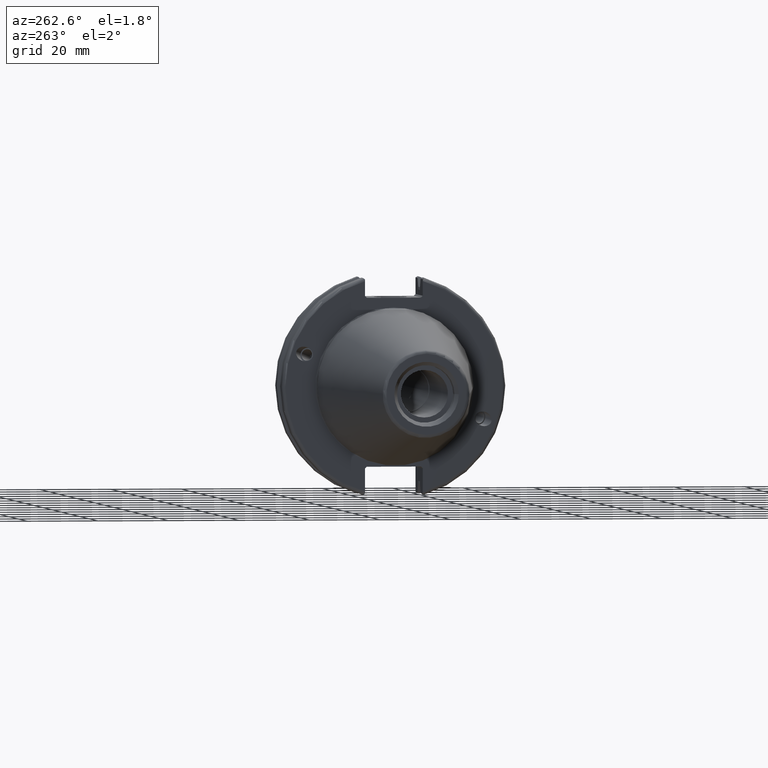
[diagram: clean part render]
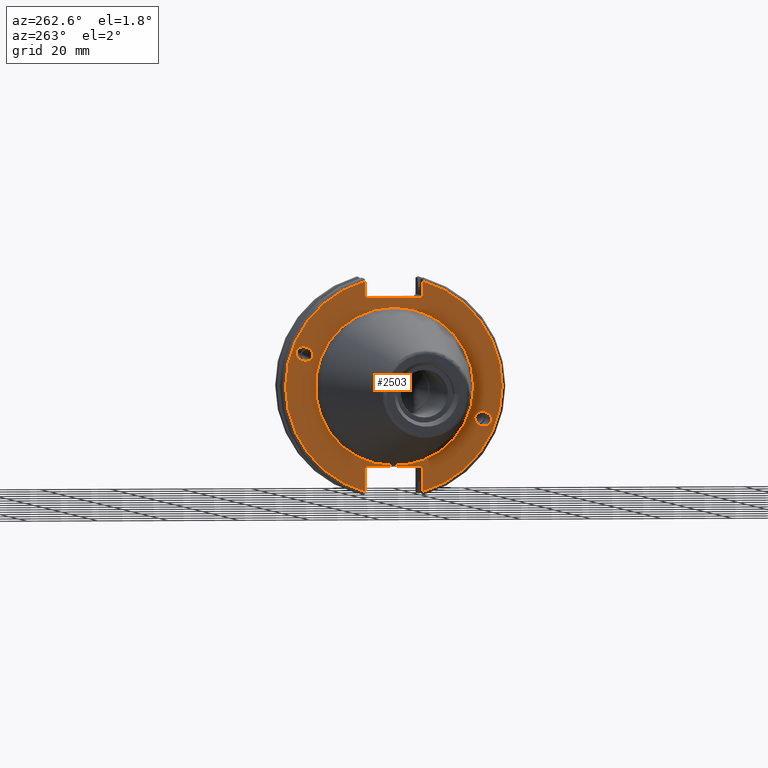
[diagram: same view with one face highlighted and labeled with its STEP entity id]
A machine part, auxiliary view. The second image highlights one B-rep face of the part: STEP entity #2503.
In plain terms, the highlighted planar face has unit normal (-1, 0, 0).
Its self-contained STEP definition (entity closure, byte-faithful):
#84=ELLIPSE('',#2779,2.44154917752292,2.00000000000001);
#93=ELLIPSE('',#2822,2.44154917752292,2.00000000000001);
#180=FACE_BOUND('',#535,.T.);
#181=FACE_BOUND('',#536,.T.);
#182=FACE_BOUND('',#537,.T.);
#252=CIRCLE('',#2830,22.3);
#254=CIRCLE('',#2833,30.75);
#255=CIRCLE('',#2834,30.75);
#375=FACE_OUTER_BOUND('',#534,.T.);
#534=EDGE_LOOP('',(#1927,#1928,#1929,#1930,#1931,#1932,#1933,#1934,#1935,
#1936,#1937,#1938));
#535=EDGE_LOOP('',(#1939));
#536=EDGE_LOOP('',(#1940));
#537=EDGE_LOOP('',(#1941));
#705=LINE('',#4360,#875);
#706=LINE('',#4362,#876);
#707=LINE('',#4364,#877);
#708=LINE('',#4366,#878);
#709=LINE('',#4368,#879);
#710=LINE('',#4372,#880);
#711=LINE('',#4374,#881);
#712=LINE('',#4376,#882);
#713=LINE('',#4378,#883);
#714=LINE('',#4379,#884);
#875=VECTOR('',#3341,10.);
#876=VECTOR('',#3342,10.);
#877=VECTOR('',#3343,10.);
#878=VECTOR('',#3344,10.);
#879=VECTOR('',#3345,10.);
#880=VECTOR('',#3348,10.);
#881=VECTOR('',#3349,10.);
#882=VECTOR('',#3350,10.);
#883=VECTOR('',#3351,10.);
#884=VECTOR('',#3352,10.);
#1091=VERTEX_POINT('',#4153);
#1131=VERTEX_POINT('',#4336);
#1136=VERTEX_POINT('',#4351);
#1137=VERTEX_POINT('',#4356);
#1138=VERTEX_POINT('',#4357);
#1139=VERTEX_POINT('',#4359);
#1140=VERTEX_POINT('',#4361);
#1141=VERTEX_POINT('',#4363);
#1142=VERTEX_POINT('',#4365);
#1143=VERTEX_POINT('',#4367);
#1144=VERTEX_POINT('',#4369);
#1145=VERTEX_POINT('',#4371);
#1146=VERTEX_POINT('',#4373);
#1147=VERTEX_POINT('',#4375);
#1148=VERTEX_POINT('',#4377);
#1365=EDGE_CURVE('',#1091,#1091,#84,.T.);
#1421=EDGE_CURVE('',#1131,#1131,#93,.T.);
#1428=EDGE_CURVE('',#1136,#1136,#252,.T.);
#1430=EDGE_CURVE('',#1137,#1138,#254,.T.);
#1431=EDGE_CURVE('',#1137,#1139,#705,.T.);
#1432=EDGE_CURVE('',#1140,#1139,#706,.T.);
#1433=EDGE_CURVE('',#1140,#1141,#707,.T.);
#1434=EDGE_CURVE('',#1142,#1141,#708,.T.);
#1435=EDGE_CURVE('',#1142,#1143,#709,.T.);
#1436=EDGE_CURVE('',#1144,#1143,#255,.T.);
#1437=EDGE_CURVE('',#1144,#1145,#710,.T.);
#1438=EDGE_CURVE('',#1146,#1145,#711,.T.);
#1439=EDGE_CURVE('',#1146,#1147,#712,.T.);
#1440=EDGE_CURVE('',#1148,#1147,#713,.T.);
#1441=EDGE_CURVE('',#1148,#1138,#714,.T.);
#1927=ORIENTED_EDGE('',*,*,#1430,.F.);
#1928=ORIENTED_EDGE('',*,*,#1431,.T.);
#1929=ORIENTED_EDGE('',*,*,#1432,.F.);
#1930=ORIENTED_EDGE('',*,*,#1433,.T.);
#1931=ORIENTED_EDGE('',*,*,#1434,.F.);
#1932=ORIENTED_EDGE('',*,*,#1435,.T.);
#1933=ORIENTED_EDGE('',*,*,#1436,.F.);
#1934=ORIENTED_EDGE('',*,*,#1437,.T.);
#1935=ORIENTED_EDGE('',*,*,#1438,.F.);
#1936=ORIENTED_EDGE('',*,*,#1439,.T.);
#1937=ORIENTED_EDGE('',*,*,#1440,.F.);
#1938=ORIENTED_EDGE('',*,*,#1441,.T.);
#1939=ORIENTED_EDGE('',*,*,#1365,.T.);
#1940=ORIENTED_EDGE('',*,*,#1421,.T.);
#1941=ORIENTED_EDGE('',*,*,#1428,.F.);
#2393=PLANE('',#2832);
#2503=ADVANCED_FACE('',(#375,#180,#181,#182),#2393,.T.);
#2779=AXIS2_PLACEMENT_3D('',#4155,#3212,#3213);
#2822=AXIS2_PLACEMENT_3D('',#4338,#3315,#3316);
#2830=AXIS2_PLACEMENT_3D('',#4353,#3333,#3334);
#2832=AXIS2_PLACEMENT_3D('',#4355,#3337,#3338);
#2833=AXIS2_PLACEMENT_3D('',#4358,#3339,#3340);
#2834=AXIS2_PLACEMENT_3D('',#4370,#3346,#3347);
#3212=DIRECTION('center_axis',(1.,0.,0.));
#3213=DIRECTION('ref_axis',(5.68400912649E-17,-0.939692620785909,-0.342020143325667));
#3315=DIRECTION('center_axis',(1.,0.,0.));
#3316=DIRECTION('ref_axis',(5.68400912649E-17,0.939692620785909,0.342020143325667));
#3333=DIRECTION('center_axis',(-1.,0.,0.));
#3334=DIRECTION('ref_axis',(0.,-1.,1.83697019872103E-16));
#3337=DIRECTION('center_axis',(-1.,0.,0.));
#3338=DIRECTION('ref_axis',(0.,0.,1.));
#3339=DIRECTION('center_axis',(1.,0.,0.));
#3340=DIRECTION('ref_axis',(0.,-1.,1.60812264967664E-16));
#3341=DIRECTION('',(0.,0.,-1.));
#3342=DIRECTION('',(0.,-0.70710678118655,0.707106781186545));
#3343=DIRECTION('',(0.,1.,0.));
#3344=DIRECTION('',(0.,-0.707106781186549,-0.707106781186546));
#3345=DIRECTION('',(0.,0.,1.));
#3346=DIRECTION('center_axis',(1.,0.,0.));
#3347=DIRECTION('ref_axis',(0.,1.,1.60812264967664E-16));
#3348=DIRECTION('',(0.,0.,1.));
#3349=DIRECTION('',(0.,0.707106781186549,-0.707106781186546));
#3350=DIRECTION('',(0.,-1.,0.));
#3351=DIRECTION('',(0.,0.707106781186549,0.707106781186546));
#3352=DIRECTION('',(0.,0.,-1.));
#4153=CARTESIAN_POINT('',(3.175,-23.0773950158153,-8.39948487016));
#4155=CARTESIAN_POINT('Origin',(3.175,-25.3717007612195,-9.23454386979305));
#4336=CARTESIAN_POINT('',(3.175,23.0773950158153,8.39948487016));
#4338=CARTESIAN_POINT('Origin',(3.175,25.3717007612195,9.23454386979306));
#4351=CARTESIAN_POINT('',(3.175,-2.7309623620986E-15,22.3));
#4353=CARTESIAN_POINT('Origin',(3.175,0.,0.));
#4355=CARTESIAN_POINT('Origin',(3.175,31.75,0.));
#4356=CARTESIAN_POINT('',(3.175,-8.18999999999999,29.6392712461019));
#4357=CARTESIAN_POINT('',(3.175,-8.19,-29.6392712461019));
#4358=CARTESIAN_POINT('Origin',(3.175,0.,0.));
#4359=CARTESIAN_POINT('',(3.175,-8.18999999999999,25.5));
#4360=CARTESIAN_POINT('',(3.175,-8.18999999999999,12.5));
#4361=CARTESIAN_POINT('',(3.175,-7.68999999999999,25.));
#4362=CARTESIAN_POINT('',(3.175,8.29500000000007,9.01500000000004));
#4363=CARTESIAN_POINT('',(3.175,7.69,25.));
#4364=CARTESIAN_POINT('',(3.175,15.875,25.));
#4365=CARTESIAN_POINT('',(3.175,8.19,25.5));
#4366=CARTESIAN_POINT('',(3.175,7.58000000000002,24.89));
#4367=CARTESIAN_POINT('',(3.175,8.19,29.6392712461019));
#4368=CARTESIAN_POINT('',(3.175,8.19,12.5));
#4369=CARTESIAN_POINT('',(3.175,8.18999999999999,-29.6392712461019));
#4370=CARTESIAN_POINT('Origin',(3.175,0.,0.));
#4371=CARTESIAN_POINT('',(3.175,8.18999999999999,-23.1));
#4372=CARTESIAN_POINT('',(3.175,8.18999999999999,-11.3));
#4373=CARTESIAN_POINT('',(3.175,7.69,-22.6));
#4374=CARTESIAN_POINT('',(3.175,8.18000000000002,-23.09));
#4375=CARTESIAN_POINT('',(3.175,-7.69,-22.6));
#4376=CARTESIAN_POINT('',(3.175,15.875,-22.6));
#4377=CARTESIAN_POINT('',(3.175,-8.19,-23.1));
#4378=CARTESIAN_POINT('',(3.175,7.69500000000004,-7.21500000000002));
#4379=CARTESIAN_POINT('',(3.175,-8.19,-11.3));